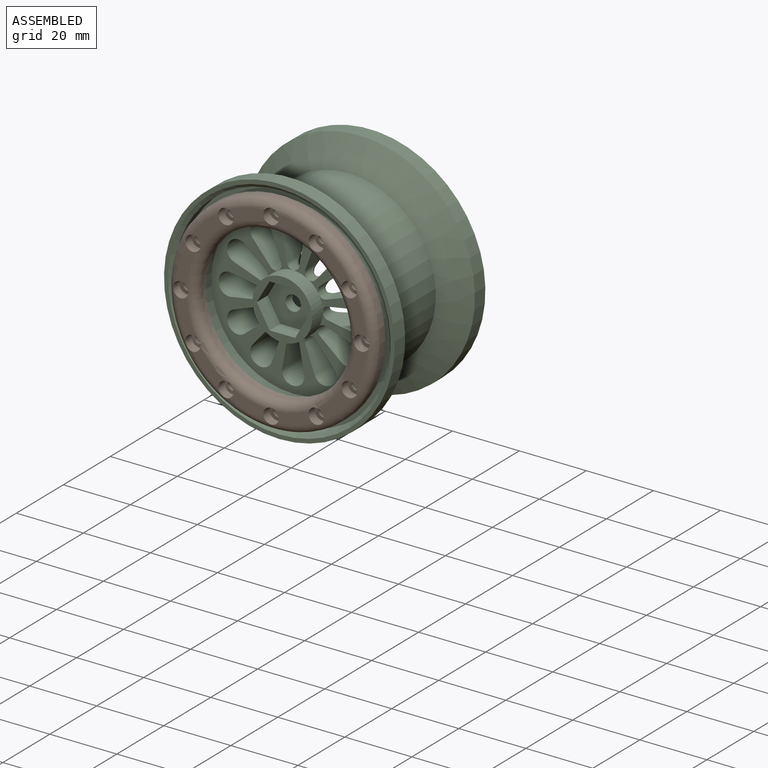
[diagram: assembled view]
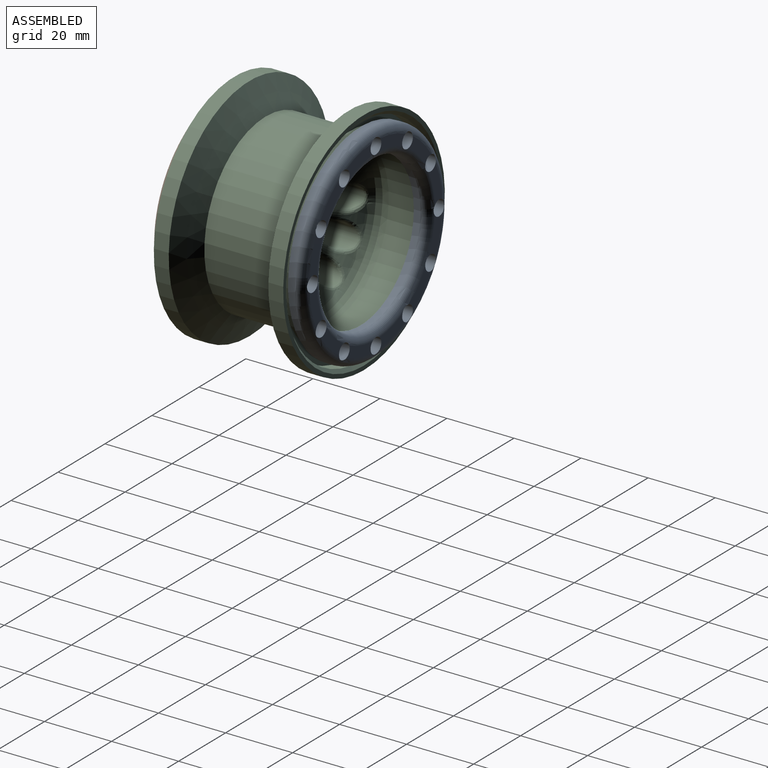
[diagram: assembled view, second angle]
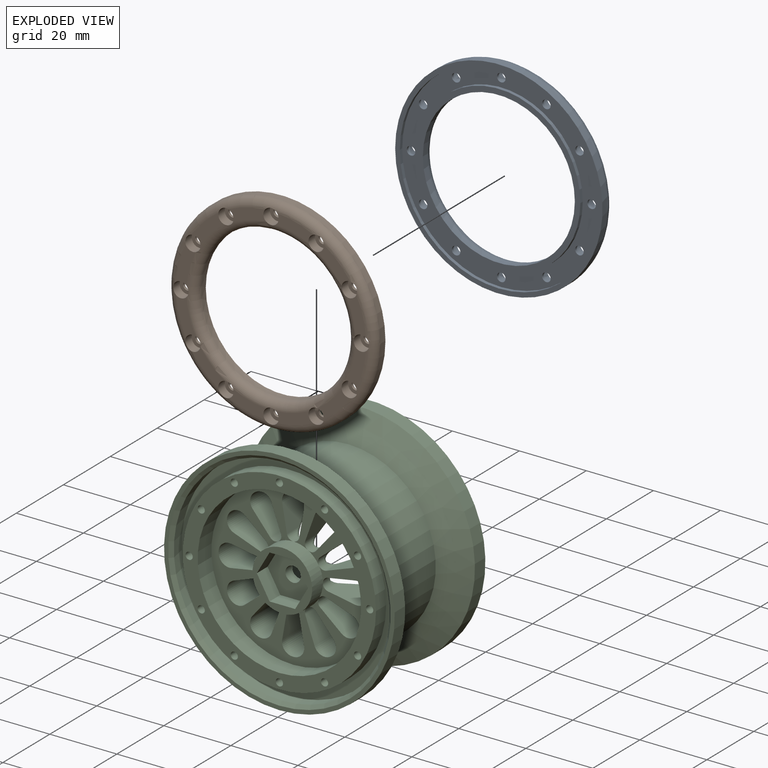
[diagram: exploded view]
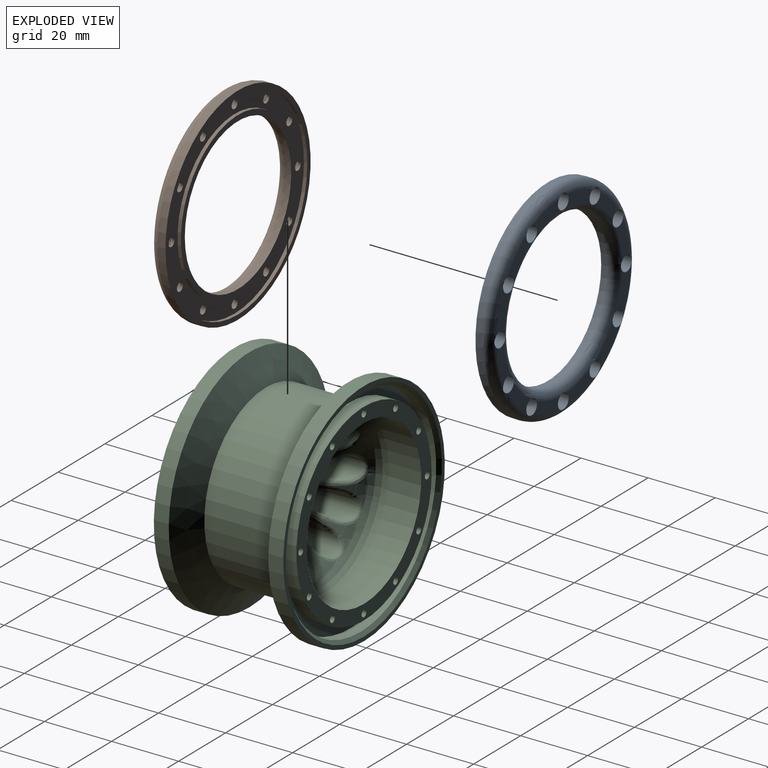
[diagram: exploded view, second angle]
ASSEMBLY  parts=3 mates=6
PART A: 57 faces, bbox 66.9x4.6x66.9 mm
  f0: plane 11.14x5.8mm, normal (0,-1,0), area 31.4mm2, adj f32,f34,f55,f56
  f1: plane 9.78x9.78mm, normal (0,-1,0), area 31.4mm2, adj f34,f36,f55,f56
  f2: plane 11.14x5.8mm, normal (0,-1,0), area 31.4mm2, adj f36,f38,f55,f56
  f3: plane 11.14x5.8mm, normal (0,-1,0), area 31.4mm2, adj f38,f54,f55,f56
  f4: plane 9.78x9.78mm, normal (0,-1,0), area 31.4mm2, adj f52,f54,f55,f56
  f5: plane 11.14x5.8mm, normal (0,-1,0), area 31.4mm2, adj f50,f52,f55,f56
  f6: plane 11.14x5.8mm, normal (0,-1,0), area 31.4mm2, adj f48,f50,f55,f56
  f7: plane 9.78x9.78mm, normal (0,-1,0), area 31.4mm2, adj f46,f48,f55,f56
  f8: plane 11.14x5.8mm, normal (0,-1,0), area 31.4mm2, adj f44,f46,f55,f56
  f9: plane 11.14x5.8mm, normal (0,-1,0), area 31.4mm2, adj f42,f44,f55,f56
  f10: plane 9.78x9.78mm, normal (0,-1,0), area 31.4mm2, adj f40,f42,f55,f56
  f11: cylinder r=1.27mm len=2.54mm, axis (0,-1,0), area 6.1mm2, adj f30,f53
  f12: cylinder r=1.27mm len=2.54mm, axis (0,-1,0), area 6.1mm2, adj f30,f51
  f13: cylinder r=1.27mm len=2.54mm, axis (0,-1,0), area 6.1mm2, adj f30,f49
  f14: cylinder r=1.27mm len=2.54mm, axis (0,-1,0), area 6.1mm2, adj f30,f47
  f15: cylinder r=1.27mm len=2.54mm, axis (0,-1,0), area 6.1mm2, adj f30,f45
  f16: cylinder r=1.27mm len=2.54mm, axis (0,-1,0), area 6.1mm2, adj f30,f43
  f17: cylinder r=1.27mm len=2.54mm, axis (0,-1,0), area 6.1mm2, adj f30,f41
  f18: cylinder r=1.27mm len=2.54mm, axis (0,-1,0), area 6.1mm2, adj f30,f39
  f19: cylinder r=1.27mm len=2.54mm, axis (0,-1,0), area 6.1mm2, adj f30,f37
  f20: cylinder r=1.27mm len=2.54mm, axis (0,-1,0), area 6.1mm2, adj f30,f35
  f21: cylinder r=1.27mm len=2.54mm, axis (0,-1,0), area 6.1mm2, adj f30,f33
  f22: cylinder r=1.27mm len=2.54mm, axis (0,-1,0), area 6.1mm2, adj f30,f31
  f23: plane 48.64x48.64mm, normal (0,1,0), area 243.7mm2, adj f24,f28
  f24: cylinder r=22.67mm len=45.34mm, axis (0,1,0), area 289.4mm2, adj f23,f55
  f25: cylinder r=30.92mm len=61.85mm, axis (0,1,0), area 394.8mm2, adj f27,f56
  f26: plane 11.14x5.8mm, normal (0,-1,0), area 31.4mm2, adj f32,f40,f55,f56
  f27: plane 61.85x61.85mm, normal (0,1,0), area 265.3mm2, adj f25,f29
  f28: cylinder r=24.32mm len=48.64mm, axis (0,1,0), area 155.3mm2, adj f23,f30
  f29: cylinder r=29.53mm len=59.06mm, axis (0,1,0), area 188.5mm2, adj f27,f30
  f30: plane 59.06x59.06mm, normal (0,1,0), area 820.1mm2, adj f11,f12,f13,f14,f15,f16,f17,f18
  f31: plane 4.57x4.57mm, normal (0,-1,0), area 11.4mm2, adj f22,f32
  f32: cylinder r=2.29mm len=4.57mm, axis (0,-1,0), area 39.7mm2, adj f0,f26,f31,f55,f56
  f33: plane 4.57x4.57mm, normal (0,-1,0), area 11.4mm2, adj f21,f34
  f34: cylinder r=2.29mm len=4.57mm, axis (0,-1,0), area 39.7mm2, adj f0,f1,f33,f55,f56
  f35: plane 4.57x4.57mm, normal (0,-1,0), area 11.4mm2, adj f20,f36
  f36: cylinder r=2.29mm len=4.57mm, axis (0,-1,0), area 39.7mm2, adj f1,f2,f35,f55,f56
  f37: plane 4.57x4.57mm, normal (0,-1,0), area 11.4mm2, adj f19,f38
  f38: cylinder r=2.29mm len=4.57mm, axis (0,-1,0), area 39.7mm2, adj f2,f3,f37,f55,f56
  f39: plane 4.57x4.57mm, normal (0,-1,0), area 11.4mm2, adj f18,f40
  f40: cylinder r=2.29mm len=4.57mm, axis (0,-1,0), area 39.7mm2, adj f10,f26,f39,f55,f56
  f41: plane 4.57x4.57mm, normal (0,-1,0), area 11.4mm2, adj f17,f42
  f42: cylinder r=2.29mm len=4.57mm, axis (0,-1,0), area 39.7mm2, adj f9,f10,f41,f55,f56
  f43: plane 4.57x4.57mm, normal (0,-1,0), area 11.4mm2, adj f16,f44
  f44: cylinder r=2.29mm len=4.57mm, axis (0,-1,0), area 39.7mm2, adj f8,f9,f43,f55,f56
  f45: plane 4.57x4.57mm, normal (0,-1,0), area 11.4mm2, adj f15,f46
  f46: cylinder r=2.29mm len=4.57mm, axis (0,-1,0), area 39.7mm2, adj f7,f8,f45,f55,f56
  f47: plane 4.57x4.57mm, normal (0,-1,0), area 11.4mm2, adj f14,f48
  f48: cylinder r=2.29mm len=4.57mm, axis (0,-1,0), area 39.7mm2, adj f6,f7,f47,f55,f56
  f49: plane 4.57x4.57mm, normal (0,-1,0), area 11.4mm2, adj f13,f50
  f50: cylinder r=2.29mm len=4.57mm, axis (0,-1,0), area 39.7mm2, adj f5,f6,f49,f55,f56
  f51: plane 4.57x4.57mm, normal (0,-1,0), area 11.4mm2, adj f12,f52
  f52: cylinder r=2.29mm len=4.57mm, axis (0,-1,0), area 39.7mm2, adj f4,f5,f51,f55,f56
  f53: plane 4.57x4.57mm, normal (0,-1,0), area 11.4mm2, adj f11,f54
  f54: cylinder r=2.29mm len=4.57mm, axis (0,-1,0), area 39.7mm2, adj f3,f4,f53,f55,f56
  f55: torus R=25.21mm, axis (0,-1,0), area 577.7mm2, adj f0,f1,f2,f3,f4,f5,f6,f7
  f56: torus R=28.38mm, axis (0,-1,0), area 726.8mm2, adj f0,f1,f2,f3,f4,f5,f6,f7
PART B: same geometry as A
PART C: 333 faces, bbox 68.8x38.6x68.8 mm
  f0: cone r=6.35mm half-angle=46.4deg, axis (0,1,0), area 24.5mm2, adj f139,f326,f329,f330,f332
  f1: cone r=6.35mm half-angle=46.4deg, axis (0,1,0), area 0mm2, adj f140,f327,f331
  f2: cone r=6.35mm half-angle=46.4deg, axis (0,1,0), area 0mm2, adj f140,f306,f310
  f3: cone r=6.35mm half-angle=46.4deg, axis (0,1,0), area 0mm2, adj f140,f311,f316
  f4: cone r=6.35mm half-angle=46.4deg, axis (0,1,0), area 0mm2, adj f140,f290,f295
  f5: cone r=6.35mm half-angle=46.4deg, axis (0,1,0), area 0mm2, adj f140,f266,f271
  f6: cone r=6.35mm half-angle=46.4deg, axis (0,1,0), area 0mm2, adj f140,f242,f247
  f7: cone r=6.35mm half-angle=46.4deg, axis (0,1,0), area 0mm2, adj f140,f218,f223
  f8: cone r=6.35mm half-angle=46.4deg, axis (0,1,0), area 0mm2, adj f140,f194,f199
  f9: cone r=6.35mm half-angle=46.4deg, axis (0,1,0), area 0mm2, adj f140,f212,f217
  f10: cone r=6.35mm half-angle=46.4deg, axis (0,1,0), area 0mm2, adj f140,f236,f241
  f11: cone r=6.35mm half-angle=46.4deg, axis (0,1,0), area 0mm2, adj f140,f260,f265
  f12: cone r=6.35mm half-angle=46.4deg, axis (0,1,0), area 0mm2, adj f140,f284,f289
  f13: cone r=6.35mm half-angle=46.4deg, axis (0,1,0), area 24.5mm2, adj f139,f297,f301,f305,f309
  f14: cone r=6.35mm half-angle=46.4deg, axis (0,1,0), area 24.5mm2, adj f139,f304,f308,f312,f313
  f15: cone r=6.35mm half-angle=46.4deg, axis (0,1,0), area 24.5mm2, adj f139,f281,f286,f287,f291
  f16: cone r=6.35mm half-angle=46.4deg, axis (0,1,0), area 24.5mm2, adj f139,f257,f262,f263,f267
  f17: cone r=6.35mm half-angle=46.4deg, axis (0,1,0), area 24.5mm2, adj f139,f233,f238,f239,f243
  f18: cone r=6.35mm half-angle=46.4deg, axis (0,1,0), area 24.5mm2, adj f139,f209,f214,f215,f219
  f19: cone r=6.35mm half-angle=46.4deg, axis (0,1,0), area 24.5mm2, adj f139,f189,f191,f192,f195
  f20: cone r=6.35mm half-angle=46.4deg, axis (0,1,0), area 24.5mm2, adj f139,f201,f205,f206,f211
  f21: cone r=6.35mm half-angle=46.4deg, axis (0,1,0), area 24.5mm2, adj f139,f225,f229,f230,f235
  f22: cone r=6.35mm half-angle=46.4deg, axis (0,1,0), area 24.5mm2, adj f139,f249,f253,f254,f259
  f23: cone r=6.35mm half-angle=46.4deg, axis (0,1,0), area 24.5mm2, adj f139,f273,f277,f278,f283
  f24: plane 57.66x57.66mm, normal (0,-1,0), area 699.2mm2, adj f35,f71,f73,f75,f77,f79,f81,f83
  f25: plane 57.66x57.66mm, normal (0,1,0), area 704.2mm2, adj f39,f47,f49,f51,f53,f55,f57,f59
  f26: plane 17.78x17.78mm, normal (0,-1,0), area 97.2mm2, adj f37,f41,f42,f43,f44,f45,f46
  f27: cylinder r=2.29mm len=4.57mm, axis (0,1,0), area 42mm2, adj f38,f40
  f28: plane 68.83x68.83mm, normal (0,1,0), area 256.3mm2, adj f29,f101
  f29: cylinder r=34.42mm len=68.83mm, axis (0,-1,0), area 961.2mm2, adj f28,f30
  f30: cone r=34.42mm half-angle=60deg, axis (0,1,0), area 1826.1mm2, adj f29,f31
  f31: cylinder r=26.1mm len=52.2mm, axis (0,-1,0), area 3298.1mm2, adj f30,f32
  f32: cone r=34.42mm half-angle=60deg, axis (0,-1,0), area 1826.1mm2, adj f31,f33
  f33: cylinder r=34.42mm len=68.83mm, axis (0,-1,0), area 961.2mm2, adj f32,f34
  f34: plane 68.83x68.83mm, normal (0,-1,0), area 256.3mm2, adj f33,f102
  f35: cylinder r=24.38mm len=48.77mm, axis (0,-1,0), area 895mm2, adj f24,f36
  f36: plane 48.77x48.77mm, normal (0,-1,0), area 829.6mm2, adj f35,f37,f103,f104,f105,f106,f107,f108
  f37: cylinder r=8.89mm len=17.78mm, axis (0,-1,0), area 259.3mm2, adj f26,f36,f141,f142,f143,f144,f145,f146
  f38: plane 8.64x8.64mm, normal (0,1,0), area 42.2mm2, adj f27,f140
  f39: cylinder r=24.38mm len=48.77mm, axis (0,-1,0), area 1486.6mm2, adj f25,f139
  f40: plane 15.25x13.21mm, normal (0,-1,0), area 134.7mm2, adj f27,f41,f42,f43,f44,f45,f46
  f41: plane 6.6x4.57mm, normal (0.87,0,-0.5), area 34.9mm2, adj f26,f40,f42,f46
  f42: plane 6.6x4.57mm, normal (0.87,0,0.5), area 34.9mm2, adj f26,f40,f41,f43
  f43: plane 7.63x4.57mm, normal (0,0,1), area 34.9mm2, adj f26,f40,f42,f44
  f44: plane 6.6x4.57mm, normal (-0.87,0,0.5), area 34.9mm2, adj f26,f40,f43,f45
  f45: plane 6.6x4.57mm, normal (-0.87,0,-0.5), area 34.9mm2, adj f26,f40,f44,f46
  f46: plane 7.63x4.57mm, normal (0,0,-1), area 34.9mm2, adj f26,f40,f41,f45
  f47: cylinder r=1.02mm len=4.32mm, axis (0,1,0), area 27.6mm2, adj f25,f48
  f48: plane 2.03x2.03mm, normal (0,1,0), area 3.2mm2, adj f47
  f49: cylinder r=1.02mm len=4.32mm, axis (0,1,0), area 27.6mm2, adj f25,f50
  f50: plane 2.03x2.03mm, normal (0,1,0), area 3.2mm2, adj f49
  f51: cylinder r=1.02mm len=4.32mm, axis (0,1,0), area 27.6mm2, adj f25,f52
  f52: plane 2.03x2.03mm, normal (0,1,0), area 3.2mm2, adj f51
  f53: cylinder r=1.02mm len=4.32mm, axis (0,1,0), area 27.6mm2, adj f25,f54
  f54: plane 2.03x2.03mm, normal (0,1,0), area 3.2mm2, adj f53
  f55: cylinder r=1.02mm len=4.32mm, axis (0,1,0), area 27.6mm2, adj f25,f56
  f56: plane 2.03x2.03mm, normal (0,1,0), area 3.2mm2, adj f55
  f57: cylinder r=1.02mm len=4.32mm, axis (0,1,0), area 27.6mm2, adj f25,f58
  f58: plane 2.03x2.03mm, normal (0,1,0), area 3.2mm2, adj f57
  f59: cylinder r=1.02mm len=4.32mm, axis (0,1,0), area 27.6mm2, adj f25,f60
  f60: plane 2.03x2.03mm, normal (0,1,0), area 3.2mm2, adj f59
  f61: cylinder r=1.02mm len=4.32mm, axis (0,1,0), area 27.6mm2, adj f25,f62
  f62: plane 2.03x2.03mm, normal (0,1,0), area 3.2mm2, adj f61
  f63: cylinder r=1.02mm len=4.32mm, axis (0,1,0), area 27.6mm2, adj f25,f64
  f64: plane 2.03x2.03mm, normal (0,1,0), area 3.2mm2, adj f63
  f65: cylinder r=1.02mm len=4.32mm, axis (0,1,0), area 27.6mm2, adj f25,f66
  f66: plane 2.03x2.03mm, normal (0,1,0), area 3.2mm2, adj f65
  f67: cylinder r=1.02mm len=4.32mm, axis (0,1,0), area 27.6mm2, adj f25,f68
  f68: plane 2.03x2.03mm, normal (0,1,0), area 3.2mm2, adj f67
  f69: cylinder r=1.02mm len=4.32mm, axis (0,1,0), area 27.6mm2, adj f25,f70
  f70: plane 2.03x2.03mm, normal (0,1,0), area 3.2mm2, adj f69
  f71: cylinder r=1.08mm len=4.32mm, axis (0,-1,0), area 29.3mm2, adj f24,f72
  f72: plane 2.16x2.16mm, normal (0,-1,0), area 3.7mm2, adj f71
  f73: cylinder r=1.08mm len=4.32mm, axis (0,-1,0), area 29.3mm2, adj f24,f74
  f74: plane 2.16x2.16mm, normal (0,-1,0), area 3.7mm2, adj f73
  f75: cylinder r=1.08mm len=4.32mm, axis (0,-1,0), area 29.3mm2, adj f24,f76
  f76: plane 2.16x2.16mm, normal (0,-1,0), area 3.7mm2, adj f75
  f77: cylinder r=1.08mm len=4.32mm, axis (0,-1,0), area 29.3mm2, adj f24,f78
  f78: plane 2.16x2.16mm, normal (0,-1,0), area 3.7mm2, adj f77
  f79: cylinder r=1.08mm len=4.32mm, axis (0,-1,0), area 29.3mm2, adj f24,f80
  f80: plane 2.16x2.16mm, normal (0,-1,0), area 3.7mm2, adj f79
  f81: cylinder r=1.08mm len=4.32mm, axis (0,-1,0), area 29.3mm2, adj f24,f82
  f82: plane 2.16x2.16mm, normal (0,-1,0), area 3.7mm2, adj f81
  f83: cylinder r=1.08mm len=4.32mm, axis (0,-1,0), area 29.3mm2, adj f24,f84
  f84: plane 2.16x2.16mm, normal (0,-1,0), area 3.7mm2, adj f83
  f85: cylinder r=1.08mm len=4.32mm, axis (0,-1,0), area 29.3mm2, adj f24,f86
  f86: plane 2.16x2.16mm, normal (0,-1,0), area 3.7mm2, adj f85
  f87: cylinder r=1.08mm len=4.32mm, axis (0,-1,0), area 29.3mm2, adj f24,f88
  f88: plane 2.16x2.16mm, normal (0,-1,0), area 3.7mm2, adj f87
  f89: cylinder r=1.08mm len=4.32mm, axis (0,-1,0), area 29.3mm2, adj f24,f90
  f90: plane 2.16x2.16mm, normal (0,-1,0), area 3.7mm2, adj f89
  f91: cylinder r=1.08mm len=4.32mm, axis (0,-1,0), area 29.3mm2, adj f24,f92
  f92: plane 2.16x2.16mm, normal (0,-1,0), area 3.7mm2, adj f91
  f93: cylinder r=1.08mm len=4.32mm, axis (0,-1,0), area 29.3mm2, adj f24,f94
  f94: plane 2.16x2.16mm, normal (0,-1,0), area 3.7mm2, adj f93
  f95: cylinder r=28.83mm len=57.66mm, axis (0,1,0), area 782.2mm2, adj f25,f97
  f96: cylinder r=32.19mm len=64.39mm, axis (0,1,0), area 667.9mm2, adj f97,f101
  f97: plane 64.39x64.39mm, normal (0,1,0), area 645.2mm2, adj f95,f96
  f98: cylinder r=28.83mm len=57.66mm, axis (0,-1,0), area 782.2mm2, adj f24,f100
  f99: cylinder r=32.19mm len=64.39mm, axis (0,-1,0), area 667.9mm2, adj f100,f102
  f100: plane 64.39x64.39mm, normal (0,-1,0), area 645.2mm2, adj f98,f99
  f101: cone r=32.19mm half-angle=45deg, axis (0,1,0), area 295.2mm2, adj f28,f96
  f102: cone r=32.19mm half-angle=45deg, axis (0,-1,0), area 295.2mm2, adj f34,f99
  f103: plane 13.03x8.14mm, normal (0.98,0,0.17), area 75.3mm2, adj f36,f164,f188,f305
  f104: cylinder r=22.23mm len=17.5mm, axis (0,1,0), area 5.5mm2, adj f36,f187,f188,f318
  f105: plane 13.03x8.14mm, normal (-0.98,0,0.17), area 75.3mm2, adj f36,f163,f187,f330
  f106: plane 13.03x7.77mm, normal (0.34,0,0.94), area 75.3mm2, adj f36,f144,f168,f259
  f107: cylinder r=22.23mm len=17.5mm, axis (0,1,0), area 5.5mm2, adj f36,f167,f168,f264
  f108: plane 13.03x6.33mm, normal (-0.64,0,-0.77), area 75.3mm2, adj f36,f143,f167,f278
  f109: plane 13.03x8.14mm, normal (-0.17,0,0.98), area 75.3mm2, adj f36,f146,f170,f235
  f110: cylinder r=22.23mm len=17.5mm, axis (0,1,0), area 5.5mm2, adj f36,f169,f170,f240
  f111: plane 13.03x8.14mm, normal (-0.17,0,-0.98), area 75.3mm2, adj f36,f145,f169,f254
  f112: plane 13.03x6.33mm, normal (0.77,0,0.64), area 75.3mm2, adj f36,f142,f166,f283
  f113: cylinder r=22.23mm len=17.5mm, axis (0,1,0), area 5.5mm2, adj f36,f165,f166,f288
  f114: plane 13.03x7.77mm, normal (-0.94,0,-0.34), area 75.3mm2, adj f36,f141,f165,f301
  f115: plane 13.03x8.14mm, normal (0.17,0,-0.98), area 75.3mm2, adj f36,f158,f182,f286
  f116: cylinder r=22.23mm len=17.5mm, axis (0,1,0), area 5.5mm2, adj f36,f181,f182,f272
  f117: plane 13.03x8.14mm, normal (0.17,0,0.98), area 75.3mm2, adj f36,f157,f181,f267
  f118: plane 13.03x7.77mm, normal (-0.34,0,-0.94), area 75.3mm2, adj f36,f156,f180,f262
  f119: cylinder r=22.23mm len=17.5mm, axis (0,1,0), area 5.5mm2, adj f36,f179,f180,f248
  f120: plane 13.03x6.33mm, normal (0.64,0,0.77), area 75.3mm2, adj f36,f155,f179,f243
  f121: plane 13.03x7.77mm, normal (0.94,0,-0.34), area 75.3mm2, adj f36,f161,f185,f332
  f122: cylinder r=22.23mm len=17.5mm, axis (0,1,0), area 5.5mm2, adj f36,f185,f186,f321
  f123: plane 13.03x6.33mm, normal (-0.77,0,0.64), area 75.3mm2, adj f36,f162,f186,f312
  f124: plane 13.03x6.33mm, normal (0.64,0,-0.77), area 75.3mm2, adj f36,f160,f184,f308
  f125: cylinder r=22.23mm len=17.5mm, axis (0,1,0), area 5.5mm2, adj f36,f183,f184,f296
  f126: plane 13.03x7.77mm, normal (-0.34,0,0.94), area 75.3mm2, adj f36,f159,f183,f291
  f127: plane 13.03x7.77mm, normal (-0.94,0,0.34), area 75.3mm2, adj f36,f150,f174,f191
  f128: cylinder r=22.23mm len=17.5mm, axis (0,1,0), area 5.5mm2, adj f36,f173,f174,f193
  f129: plane 13.03x6.33mm, normal (0.77,0,-0.64), area 75.3mm2, adj f36,f149,f173,f206
  f130: plane 13.03x6.33mm, normal (-0.64,0,0.77), area 75.3mm2, adj f36,f148,f172,f211
  f131: cylinder r=22.23mm len=17.5mm, axis (0,1,0), area 5.5mm2, adj f36,f171,f172,f216
  f132: plane 13.03x7.77mm, normal (0.34,0,-0.94), area 75.3mm2, adj f36,f147,f171,f230
  f133: plane 13.03x6.33mm, normal (-0.77,0,-0.64), area 75.3mm2, adj f36,f154,f178,f238
  f134: cylinder r=22.23mm len=17.5mm, axis (0,1,0), area 5.5mm2, adj f36,f177,f178,f224
  f135: plane 13.03x7.77mm, normal (0.94,0,0.34), area 75.3mm2, adj f36,f153,f177,f219
  f136: plane 13.03x8.14mm, normal (-0.98,0,-0.17), area 75.3mm2, adj f36,f152,f176,f214
  f137: cylinder r=22.23mm len=17.5mm, axis (0,1,0), area 5.5mm2, adj f36,f175,f176,f200
  f138: plane 13.03x8.14mm, normal (0.98,0,-0.17), area 75.3mm2, adj f36,f151,f175,f195
  f139: torus R=17.4mm, axis (0,-1,0), area 823.7mm2, adj f0,f13,f14,f15,f16,f17,f18,f19
  f140: torus R=4.32mm, axis (0,-1,0), area 114mm2, adj f1,f2,f3,f4,f5,f6,f7,f8
  f141: cylinder r=1.78mm len=5.2mm, axis (0,-1,0), area 9mm2, adj f36,f37,f114,f302,f306
  f142: cylinder r=1.78mm len=5.2mm, axis (0,-1,0), area 9mm2, adj f36,f37,f112,f289,f294
  f143: cylinder r=1.78mm len=5.2mm, axis (0,-1,0), area 9mm2, adj f36,f37,f108,f279,f284
  f144: cylinder r=1.78mm len=5.2mm, axis (0,-1,0), area 9mm2, adj f36,f37,f106,f265,f270
  f145: cylinder r=1.78mm len=5.2mm, axis (0,-1,0), area 9mm2, adj f36,f37,f111,f255,f260
  f146: cylinder r=1.78mm len=5.2mm, axis (0,-1,0), area 9mm2, adj f36,f37,f109,f241,f246
  f147: cylinder r=1.78mm len=5.2mm, axis (0,-1,0), area 9mm2, adj f36,f37,f132,f231,f236
  f148: cylinder r=1.78mm len=5.2mm, axis (0,-1,0), area 9mm2, adj f36,f37,f130,f217,f222
  f149: cylinder r=1.78mm len=5.2mm, axis (0,-1,0), area 9mm2, adj f36,f37,f129,f207,f212
  f150: cylinder r=1.78mm len=5.2mm, axis (0,-1,0), area 9mm2, adj f36,f37,f127,f194,f198
  f151: cylinder r=1.78mm len=5.2mm, axis (0,-1,0), area 9mm2, adj f36,f37,f138,f199,f203
  f152: cylinder r=1.78mm len=5.2mm, axis (0,-1,0), area 9mm2, adj f36,f37,f136,f213,f218
  f153: cylinder r=1.78mm len=5.2mm, axis (0,-1,0), area 9mm2, adj f36,f37,f135,f223,f227
  f154: cylinder r=1.78mm len=5.2mm, axis (0,-1,0), area 9mm2, adj f36,f37,f133,f237,f242
  f155: cylinder r=1.78mm len=5.2mm, axis (0,-1,0), area 9mm2, adj f36,f37,f120,f247,f251
  f156: cylinder r=1.78mm len=5.2mm, axis (0,-1,0), area 9mm2, adj f36,f37,f118,f261,f266
  f157: cylinder r=1.78mm len=5.2mm, axis (0,-1,0), area 9mm2, adj f36,f37,f117,f271,f275
  f158: cylinder r=1.78mm len=5.2mm, axis (0,-1,0), area 9mm2, adj f36,f37,f115,f285,f290
  f159: cylinder r=1.78mm len=5.2mm, axis (0,-1,0), area 9mm2, adj f36,f37,f126,f295,f299
  f160: cylinder r=1.78mm len=5.2mm, axis (0,-1,0), area 9mm2, adj f36,f37,f124,f307,f311
  f161: cylinder r=1.78mm len=5.2mm, axis (0,-1,0), area 9mm2, adj f36,f37,f121,f328,f331
  f162: cylinder r=1.78mm len=5.2mm, axis (0,-1,0), area 9mm2, adj f36,f37,f123,f316,f320
  f163: cylinder r=1.78mm len=5.2mm, axis (0,-1,0), area 9mm2, adj f36,f37,f105,f323,f327
  f164: cylinder r=1.78mm len=5.2mm, axis (0,-1,0), area 9mm2, adj f36,f37,f103,f310,f315
  f165: cylinder r=3.17mm len=17.5mm, axis (0,1,0), area 86.5mm2, adj f36,f113,f114,f293,f297
  f166: cylinder r=3.17mm len=17.5mm, axis (0,1,0), area 86.5mm2, adj f36,f112,f113,f277,f282
  f167: cylinder r=3.17mm len=17.5mm, axis (0,1,0), area 86.5mm2, adj f36,f107,f108,f269,f273
  f168: cylinder r=3.17mm len=17.5mm, axis (0,1,0), area 86.5mm2, adj f36,f106,f107,f253,f258
  f169: cylinder r=3.17mm len=17.5mm, axis (0,1,0), area 86.5mm2, adj f36,f110,f111,f245,f249
  f170: cylinder r=3.17mm len=17.5mm, axis (0,1,0), area 86.5mm2, adj f36,f109,f110,f229,f234
  f171: cylinder r=3.17mm len=17.5mm, axis (0,1,0), area 86.5mm2, adj f36,f131,f132,f221,f225
  f172: cylinder r=3.17mm len=17.5mm, axis (0,1,0), area 86.5mm2, adj f36,f130,f131,f205,f210
  f173: cylinder r=3.17mm len=17.5mm, axis (0,1,0), area 86.5mm2, adj f36,f128,f129,f197,f201
  f174: cylinder r=3.17mm len=17.5mm, axis (0,1,0), area 86.5mm2, adj f36,f127,f128,f189,f190
  f175: cylinder r=3.17mm len=17.5mm, axis (0,1,0), area 86.5mm2, adj f36,f137,f138,f192,f196
  f176: cylinder r=3.17mm len=17.5mm, axis (0,1,0), area 86.5mm2, adj f36,f136,f137,f204,f209
  f177: cylinder r=3.17mm len=17.5mm, axis (0,1,0), area 86.5mm2, adj f36,f134,f135,f215,f220
  f178: cylinder r=3.17mm len=17.5mm, axis (0,1,0), area 86.5mm2, adj f36,f133,f134,f228,f233
  f179: cylinder r=3.17mm len=17.5mm, axis (0,1,0), area 86.5mm2, adj f36,f119,f120,f239,f244
  f180: cylinder r=3.17mm len=17.5mm, axis (0,1,0), area 86.5mm2, adj f36,f118,f119,f252,f257
  f181: cylinder r=3.17mm len=17.5mm, axis (0,1,0), area 86.5mm2, adj f36,f116,f117,f263,f268
  f182: cylinder r=3.17mm len=17.5mm, axis (0,1,0), area 86.5mm2, adj f36,f115,f116,f276,f281
  f183: cylinder r=3.17mm len=17.5mm, axis (0,1,0), area 86.5mm2, adj f36,f125,f126,f287,f292
  f184: cylinder r=3.17mm len=17.5mm, axis (0,1,0), area 86.5mm2, adj f36,f124,f125,f300,f304
  f185: cylinder r=3.17mm len=17.5mm, axis (0,1,0), area 86.5mm2, adj f36,f121,f122,f325,f329
  f186: cylinder r=3.17mm len=17.5mm, axis (0,1,0), area 86.5mm2, adj f36,f122,f123,f313,f317
  f187: cylinder r=3.17mm len=17.5mm, axis (0,1,0), area 86.5mm2, adj f36,f104,f105,f322,f326
  f188: cylinder r=3.17mm len=17.5mm, axis (0,1,0), area 86.5mm2, adj f36,f103,f104,f309,f314
  f189: bspline ~5.85x5.29mm, area 9.3mm2, adj f19,f174,f190,f191
  f190: bspline ~3.6x1.71mm, area 1.8mm2, adj f139,f174,f189,f193
  f191: bspline ~21.57x21.22mm, area 20.9mm2, adj f19,f127,f189,f194,f195
  f192: bspline ~5.46x5.25mm, area 9.3mm2, adj f19,f175,f195,f196
  f193: torus R=23.49mm, axis (0,-1,0), area 0.3mm2, adj f128,f139,f190,f197
  f194: bspline ~3.79x3.2mm, area 4.5mm2, adj f8,f150,f191,f198,f199
  f195: bspline ~20.18x19.33mm, area 20.9mm2, adj f19,f138,f191,f192,f199
  f196: bspline ~3.63x1.71mm, area 1.8mm2, adj f139,f175,f192,f200
  f197: bspline ~2.75x2.65mm, area 1.8mm2, adj f139,f173,f193,f201
  f198: bspline ~3.33x2.69mm, area 3.9mm2, adj f140,f150,f194,f202
  f199: bspline ~3.8x3.54mm, area 4.5mm2, adj f8,f151,f194,f195,f203
  f200: torus R=23.49mm, axis (0,-1,0), area 0.3mm2, adj f137,f139,f196,f204
  f201: bspline ~5.96x5.46mm, area 9.3mm2, adj f20,f173,f197,f206
  f202: torus R=7.62mm, axis (0,1,0), area 0.3mm2, adj f37,f140,f198,f207
  f203: bspline ~2.78x2.73mm, area 3.9mm2, adj f140,f151,f199,f208
  f204: bspline ~3.63x1.71mm, area 1.8mm2, adj f139,f176,f200,f209
  f205: bspline ~6.25x5.85mm, area 9.3mm2, adj f20,f172,f210,f211
  f206: bspline ~19.33x16.28mm, area 20.9mm2, adj f20,f129,f201,f211,f212
  f207: bspline ~3.08x2.58mm, area 3.9mm2, adj f140,f149,f202,f212
  f208: torus R=7.62mm, axis (0,1,0), area 0.3mm2, adj f37,f140,f203,f213
  f209: bspline ~5.85x5.65mm, area 9.3mm2, adj f18,f176,f204,f214
  f210: bspline ~2.75x2.65mm, area 1.8mm2, adj f139,f172,f205,f216
  f211: bspline ~21.57x18.09mm, area 20.9mm2, adj f20,f130,f205,f206,f217
  f212: bspline ~3.8x3.21mm, area 4.5mm2, adj f9,f149,f206,f207,f217
  f213: bspline ~2.78x2.73mm, area 3.9mm2, adj f140,f152,f208,f218
  f214: bspline ~22.52x21.57mm, area 20.9mm2, adj f18,f136,f209,f218,f219
  f215: bspline ~5.46x5.19mm, area 9.3mm2, adj f18,f177,f219,f220
  f216: torus R=23.49mm, axis (0,-1,0), area 0.3mm2, adj f131,f139,f210,f221
  f217: bspline ~3.27x2.92mm, area 4.5mm2, adj f9,f148,f211,f212,f222
  f218: bspline ~3.79x3.53mm, area 4.5mm2, adj f7,f152,f213,f214,f223
  f219: bspline ~19.33x19mm, area 20.9mm2, adj f18,f135,f214,f215,f223
  f220: bspline ~3.6x1.71mm, area 1.8mm2, adj f139,f177,f215,f224
  f221: bspline ~3.6x1.71mm, area 1.8mm2, adj f139,f171,f216,f225
  f222: bspline ~2.78x2.58mm, area 3.9mm2, adj f140,f148,f217,f226
  f223: bspline ~3.8x3.21mm, area 4.5mm2, adj f7,f153,f218,f219,f227
  f224: torus R=23.49mm, axis (0,-1,0), area 0.3mm2, adj f134,f139,f220,f228
  f225: bspline ~5.46x5.19mm, area 9.3mm2, adj f21,f171,f221,f230
  f226: torus R=7.62mm, axis (0,1,0), area 0.3mm2, adj f37,f140,f222,f231
  f227: bspline ~3.02x2.62mm, area 3.9mm2, adj f140,f153,f223,f232
  f228: bspline ~2.75x2.65mm, area 1.8mm2, adj f139,f178,f224,f233
  f229: bspline ~5.85x5.65mm, area 9.3mm2, adj f21,f170,f234,f235
  f230: bspline ~19.33x19mm, area 20.9mm2, adj f21,f132,f225,f235,f236
  f231: bspline ~3.02x2.62mm, area 3.9mm2, adj f140,f147,f226,f236
  f232: torus R=7.62mm, axis (0,1,0), area 0.3mm2, adj f37,f140,f227,f237
  f233: bspline ~6.25x5.85mm, area 9.3mm2, adj f17,f178,f228,f238
  f234: bspline ~3.63x1.71mm, area 1.8mm2, adj f139,f170,f229,f240
  f235: bspline ~22.52x21.57mm, area 20.9mm2, adj f21,f109,f229,f230,f241
  f236: bspline ~3.8x3.21mm, area 4.5mm2, adj f10,f147,f230,f231,f241
  f237: bspline ~2.79x2.35mm, area 3.9mm2, adj f140,f154,f232,f242
  f238: bspline ~21.57x18.09mm, area 20.9mm2, adj f17,f133,f233,f242,f243
  f239: bspline ~5.96x5.46mm, area 9.3mm2, adj f17,f179,f243,f244
  f240: torus R=23.49mm, axis (0,-1,0), area 0.3mm2, adj f110,f139,f234,f245
  f241: bspline ~3.79x3.53mm, area 4.5mm2, adj f10,f146,f235,f236,f246
  f242: bspline ~3.27x2.92mm, area 4.5mm2, adj f6,f154,f237,f238,f247
  f243: bspline ~19.33x16.28mm, area 20.9mm2, adj f17,f120,f238,f239,f247
  f244: bspline ~2.75x2.65mm, area 1.8mm2, adj f139,f179,f239,f248
  f245: bspline ~3.63x1.71mm, area 1.8mm2, adj f139,f169,f240,f249
  f246: bspline ~2.78x2.73mm, area 3.9mm2, adj f140,f146,f241,f250
  f247: bspline ~3.8x3.21mm, area 4.5mm2, adj f6,f155,f242,f243,f251
  f248: torus R=23.49mm, axis (0,-1,0), area 0.3mm2, adj f119,f139,f244,f252
  f249: bspline ~5.46x5.25mm, area 9.3mm2, adj f22,f169,f245,f254
  f250: torus R=7.62mm, axis (0,1,0), area 0.3mm2, adj f37,f140,f246,f255
  f251: bspline ~3.08x2.58mm, area 3.9mm2, adj f140,f155,f247,f256
  f252: bspline ~3.6x1.71mm, area 1.8mm2, adj f139,f180,f248,f257
  f253: bspline ~5.85x5.29mm, area 9.3mm2, adj f22,f168,f258,f259
  f254: bspline ~20.18x19.33mm, area 20.9mm2, adj f22,f111,f249,f259,f260
  f255: bspline ~2.78x2.73mm, area 3.9mm2, adj f140,f145,f250,f260
  f256: torus R=7.62mm, axis (0,1,0), area 0.3mm2, adj f37,f140,f251,f261
  f257: bspline ~5.85x5.29mm, area 9.3mm2, adj f16,f180,f252,f262
  f258: bspline ~3.6x1.71mm, area 1.8mm2, adj f139,f168,f253,f264
  f259: bspline ~21.57x21.22mm, area 20.9mm2, adj f22,f106,f253,f254,f265
  f260: bspline ~3.8x3.54mm, area 4.5mm2, adj f11,f145,f254,f255,f265
  f261: bspline ~3.02x2.62mm, area 3.9mm2, adj f140,f156,f256,f266
  f262: bspline ~21.57x21.22mm, area 20.9mm2, adj f16,f118,f257,f266,f267
  f263: bspline ~5.46x5.25mm, area 9.3mm2, adj f16,f181,f267,f268
  f264: torus R=23.49mm, axis (0,-1,0), area 0.3mm2, adj f107,f139,f258,f269
  f265: bspline ~3.79x3.2mm, area 4.5mm2, adj f11,f144,f259,f260,f270
  f266: bspline ~3.79x3.2mm, area 4.5mm2, adj f5,f156,f261,f262,f271
  f267: bspline ~20.18x19.33mm, area 20.9mm2, adj f16,f117,f262,f263,f271
  f268: bspline ~3.63x1.71mm, area 1.8mm2, adj f139,f181,f263,f272
  f269: bspline ~2.75x2.65mm, area 1.8mm2, adj f139,f167,f264,f273
  f270: bspline ~3.02x2.62mm, area 3.9mm2, adj f140,f144,f265,f274
  f271: bspline ~3.8x3.54mm, area 4.5mm2, adj f5,f157,f266,f267,f275
  f272: torus R=23.49mm, axis (0,-1,0), area 0.3mm2, adj f116,f139,f268,f276
  f273: bspline ~5.96x5.46mm, area 9.3mm2, adj f23,f167,f269,f278
  f274: torus R=7.62mm, axis (0,1,0), area 0.3mm2, adj f37,f140,f270,f279
  f275: bspline ~2.78x2.73mm, area 3.9mm2, adj f140,f157,f271,f280
  f276: bspline ~3.63x1.71mm, area 1.8mm2, adj f139,f182,f272,f281
  f277: bspline ~6.25x5.85mm, area 9.3mm2, adj f23,f166,f282,f283
  f278: bspline ~19.33x16.28mm, area 20.9mm2, adj f23,f108,f273,f283,f284
  f279: bspline ~3.08x2.58mm, area 3.9mm2, adj f140,f143,f274,f284
  f280: torus R=7.62mm, axis (0,1,0), area 0.3mm2, adj f37,f140,f275,f285
  f281: bspline ~5.85x5.65mm, area 9.3mm2, adj f15,f182,f276,f286
  f282: bspline ~2.75x2.65mm, area 1.8mm2, adj f139,f166,f277,f288
  f283: bspline ~21.57x18.09mm, area 20.9mm2, adj f23,f112,f277,f278,f289
  f284: bspline ~3.8x3.21mm, area 4.5mm2, adj f12,f143,f278,f279,f289
  f285: bspline ~2.5x2.48mm, area 3.9mm2, adj f140,f158,f280,f290
  f286: bspline ~22.52x21.57mm, area 20.9mm2, adj f15,f115,f281,f290,f291
  f287: bspline ~5.46x5.19mm, area 9.3mm2, adj f15,f183,f291,f292
  f288: torus R=23.49mm, axis (0,-1,0), area 0.3mm2, adj f113,f139,f282,f293
  f289: bspline ~3.79x3.22mm, area 4.5mm2, adj f12,f142,f283,f284,f294
  f290: bspline ~3.79x3.53mm, area 4.5mm2, adj f4,f158,f285,f286,f295
  f291: bspline ~19.33x19mm, area 20.9mm2, adj f15,f126,f286,f287,f295
  f292: bspline ~3.11x1.71mm, area 1.8mm2, adj f139,f183,f287,f296
  f293: bspline ~3.6x1.71mm, area 1.8mm2, adj f139,f165,f288,f297
  f294: bspline ~2.78x2.58mm, area 3.9mm2, adj f140,f142,f289,f298
  f295: bspline ~3.8x3.21mm, area 4.5mm2, adj f4,f159,f290,f291,f299
  f296: torus R=23.49mm, axis (0,-1,0), area 0.3mm2, adj f125,f139,f292,f300
  f297: bspline ~5.46x5.19mm, area 9.3mm2, adj f13,f165,f293,f301
  f298: torus R=7.62mm, axis (0,1,0), area 0.3mm2, adj f37,f140,f294,f302
  f299: bspline ~3.02x2.62mm, area 3.9mm2, adj f140,f159,f295,f303
  f300: bspline ~2.75x2.65mm, area 1.8mm2, adj f139,f184,f296,f304
  f301: bspline ~19.33x19mm, area 20.9mm2, adj f13,f114,f297,f305,f306
  f302: bspline ~3.02x2.62mm, area 3.9mm2, adj f140,f141,f298,f306
  f303: torus R=7.62mm, axis (0,1,0), area 0.3mm2, adj f37,f140,f299,f307
  f304: bspline ~6.25x5.85mm, area 9.3mm2, adj f14,f184,f300,f308
  f305: bspline ~22.52x21.57mm, area 20.9mm2, adj f13,f103,f301,f309,f310
  f306: bspline ~3.8x3.21mm, area 4.5mm2, adj f2,f141,f301,f302,f310
  f307: bspline ~2.78x2.58mm, area 3.9mm2, adj f140,f160,f303,f311
  f308: bspline ~21.57x18.09mm, area 20.9mm2, adj f14,f124,f304,f311,f312
  f309: bspline ~5.85x5.65mm, area 9.3mm2, adj f13,f188,f305,f314
  f310: bspline ~3.79x3.53mm, area 4.5mm2, adj f2,f164,f305,f306,f315
  f311: bspline ~3.27x2.92mm, area 4.5mm2, adj f3,f160,f307,f308,f316
  f312: bspline ~19.33x16.28mm, area 20.9mm2, adj f14,f123,f308,f313,f316
  f313: bspline ~5.96x5.46mm, area 9.3mm2, adj f14,f186,f312,f317
  f314: bspline ~3.63x1.71mm, area 1.8mm2, adj f139,f188,f309,f318
  f315: bspline ~2.78x2.73mm, area 3.9mm2, adj f140,f164,f310,f319
  f316: bspline ~3.8x3.21mm, area 4.5mm2, adj f3,f162,f311,f312,f320
  f317: bspline ~2.75x2.65mm, area 1.8mm2, adj f139,f186,f313,f321
  f318: torus R=23.49mm, axis (0,-1,0), area 0.3mm2, adj f104,f139,f314,f322
  f319: torus R=7.62mm, axis (0,1,0), area 0.3mm2, adj f37,f140,f315,f323
  f320: bspline ~3.08x2.58mm, area 3.9mm2, adj f140,f162,f316,f324
  f321: torus R=23.49mm, axis (0,-1,0), area 0.3mm2, adj f122,f139,f317,f325
  f322: bspline ~3.63x1.71mm, area 1.8mm2, adj f139,f187,f318,f326
  f323: bspline ~2.78x2.73mm, area 3.9mm2, adj f140,f163,f319,f327
  f324: torus R=7.62mm, axis (0,1,0), area 0.3mm2, adj f37,f140,f320,f328
  f325: bspline ~3.6x1.71mm, area 1.8mm2, adj f139,f185,f321,f329
  f326: bspline ~5.46x5.25mm, area 9.3mm2, adj f0,f187,f322,f330
  f327: bspline ~3.8x3.54mm, area 4.5mm2, adj f1,f163,f323,f330,f331
  f328: bspline ~3.18x2.58mm, area 3.9mm2, adj f140,f161,f324,f331
  f329: bspline ~5.85x5.29mm, area 9.3mm2, adj f0,f185,f325,f332
  f330: bspline ~20.18x19.33mm, area 20.9mm2, adj f0,f105,f326,f327,f332
  f331: bspline ~3.79x3.2mm, area 4.5mm2, adj f1,f161,f327,f328,f332
  f332: bspline ~21.57x21.22mm, area 20.9mm2, adj f0,f121,f329,f330,f331
PLACE A rot(axis=(0,0,1),180deg) t=(0,18.29,0)mm
PLACE B t=(0,-18.29,0)mm
PLACE C t=(0,-18.03,0)mm fixed
MATE cylindrical A.f24 <-> C.f0  axis (0,-1,0) through (0,19.3,0)mm
MATE planar A.f24 <-> C.f0  axis (0,-1,0) through (0,19.3,0)mm
MATE cylindrical B.f24 <-> C.f0  axis (0,1,0) through (0,-19.3,0)mm
MATE cylindrical A.f21 <-> C.f67  axis (0,1,0) through (-13.46,19.69,23.32)mm
MATE cylindrical B.f22 <-> C.f69  axis (0,-1,0) through (0,-19.69,26.92)mm
MATE planar B.f12 <-> C.f0  axis (0,1,0) through (13.46,-19.3,-23.32)mm
